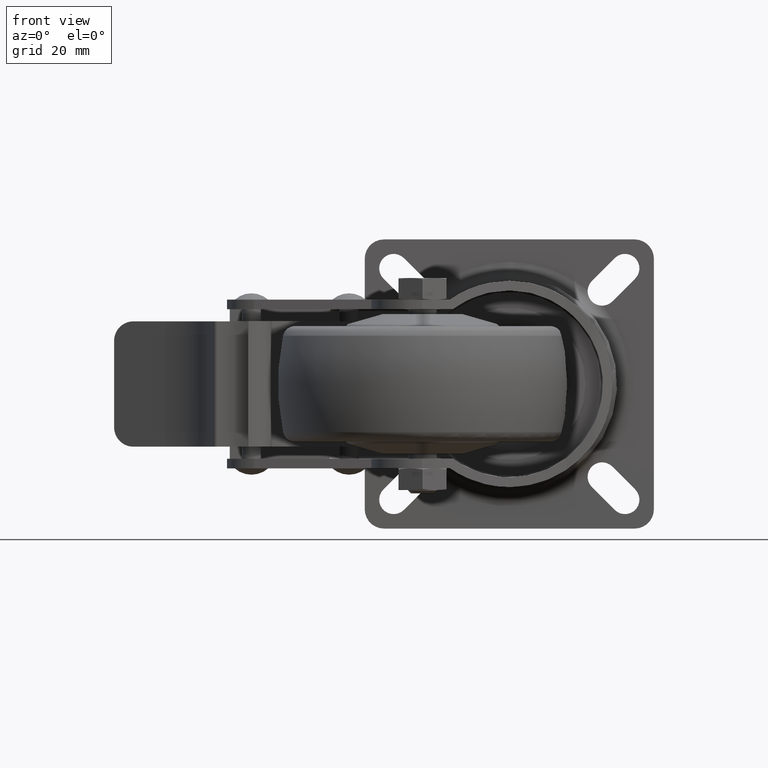
[diagram: clean part render]
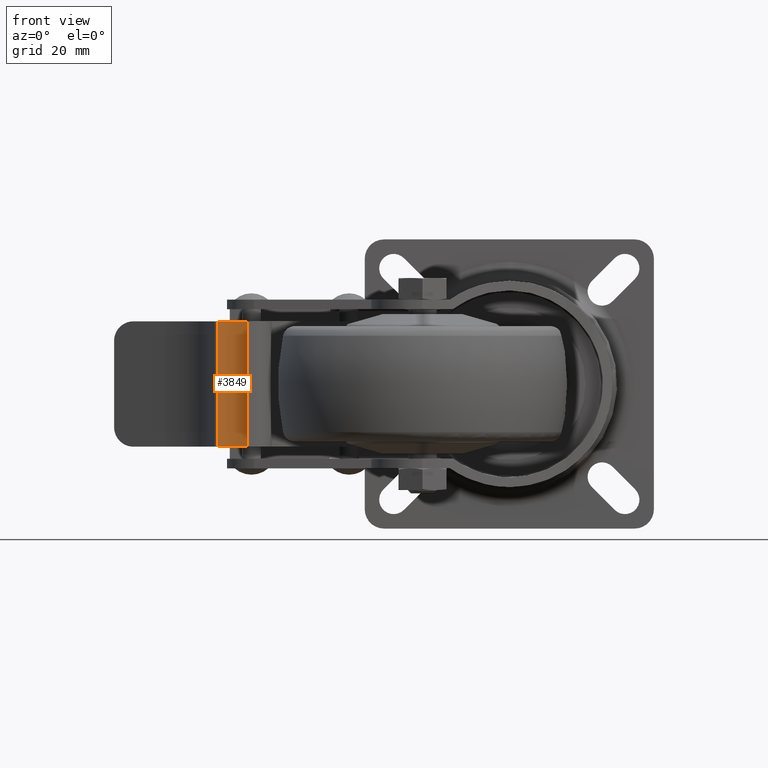
[diagram: same view with one face highlighted and labeled with its STEP entity id]
A machine part, front view. The second image highlights one B-rep face of the part: STEP entity #3849.
In plain terms, the highlighted cylindrical surface (partial cylindrical patch) has radius 10.67 mm, axis along (0, 0, -1).
Its self-contained STEP definition (entity closure, byte-faithful):
#220=LINE('',#6409,#451);
#221=LINE('',#6415,#452);
#451=VECTOR('',#5121,1000.);
#452=VECTOR('',#5128,1000.);
#658=CYLINDRICAL_SURFACE('',#4400,10.67);
#929=FACE_OUTER_BOUND('',#1183,.T.);
#1183=EDGE_LOOP('',(#2891,#2892,#2893,#2894));
#1452=CIRCLE('',#4401,10.67);
#1453=CIRCLE('',#4402,10.67);
#1758=VERTEX_POINT('',#6406);
#1759=VERTEX_POINT('',#6408);
#1760=VERTEX_POINT('',#6412);
#1761=VERTEX_POINT('',#6414);
#2181=EDGE_CURVE('',#1759,#1758,#220,.T.);
#2183=EDGE_CURVE('',#1760,#1758,#1452,.T.);
#2184=EDGE_CURVE('',#1761,#1760,#221,.T.);
#2185=EDGE_CURVE('',#1761,#1759,#1453,.T.);
#2891=ORIENTED_EDGE('',*,*,#2183,.F.);
#2892=ORIENTED_EDGE('',*,*,#2184,.F.);
#2893=ORIENTED_EDGE('',*,*,#2185,.T.);
#2894=ORIENTED_EDGE('',*,*,#2181,.T.);
#3849=ADVANCED_FACE('',(#929),#658,.F.);
#4400=AXIS2_PLACEMENT_3D('',#6411,#5124,#5125);
#4401=AXIS2_PLACEMENT_3D('',#6413,#5126,#5127);
#4402=AXIS2_PLACEMENT_3D('',#6416,#5129,#5130);
#5121=DIRECTION('',(0.,0.,-1.));
#5124=DIRECTION('center_axis',(0.,0.,-1.));
#5125=DIRECTION('ref_axis',(-1.,0.,0.));
#5126=DIRECTION('center_axis',(0.,0.,1.));
#5127=DIRECTION('ref_axis',(1.,0.,0.));
#5128=DIRECTION('',(0.,0.,-1.));
#5129=DIRECTION('center_axis',(0.,0.,1.));
#5130=DIRECTION('ref_axis',(1.,0.,0.));
#6406=CARTESIAN_POINT('',(-7.00279318768684,-7.27832698328134,-13.));
#6408=CARTESIAN_POINT('',(-7.00279318768684,-7.27832698328134,13.));
#6409=CARTESIAN_POINT('',(-7.00279318768684,-7.27832698328134,13.));
#6411=CARTESIAN_POINT('Origin',(-5.11000000000013,-17.7791,13.));
#6412=CARTESIAN_POINT('',(-0.771004701514139,-8.03117612874841,-13.));
#6413=CARTESIAN_POINT('Origin',(-5.11000000000013,-17.7791,-13.));
#6414=CARTESIAN_POINT('',(-0.771004701514139,-8.03117612874841,13.));
#6415=CARTESIAN_POINT('',(-0.771004701514139,-8.03117612874841,13.));
#6416=CARTESIAN_POINT('Origin',(-5.11000000000013,-17.7791,13.));